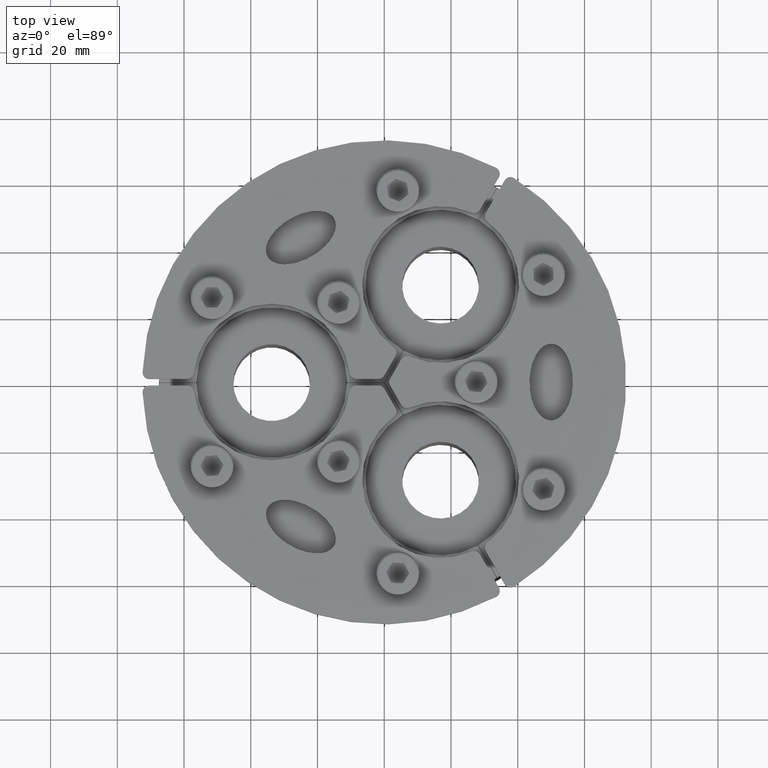
[diagram: clean part render]
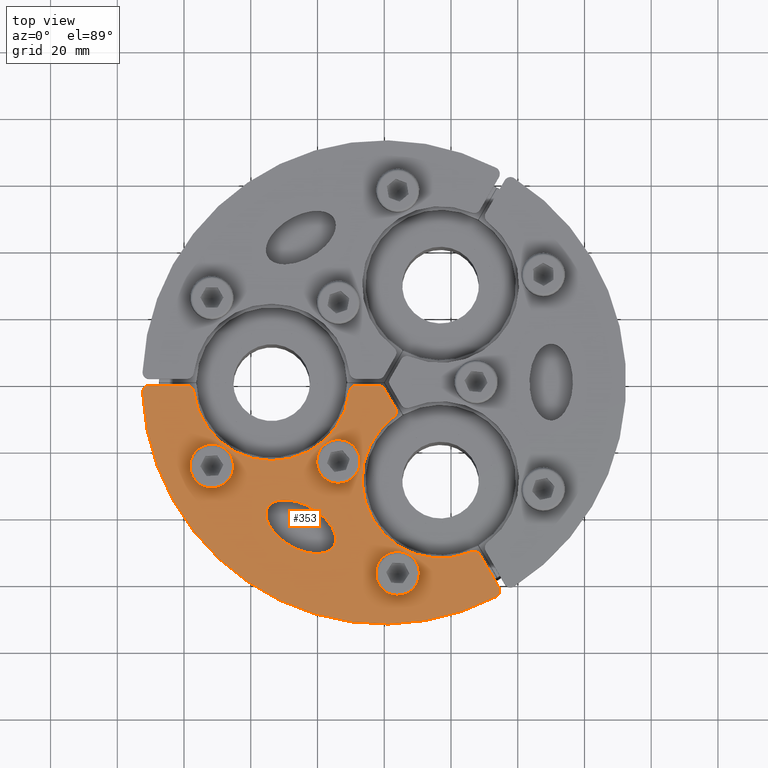
[diagram: same view with one face highlighted and labeled with its STEP entity id]
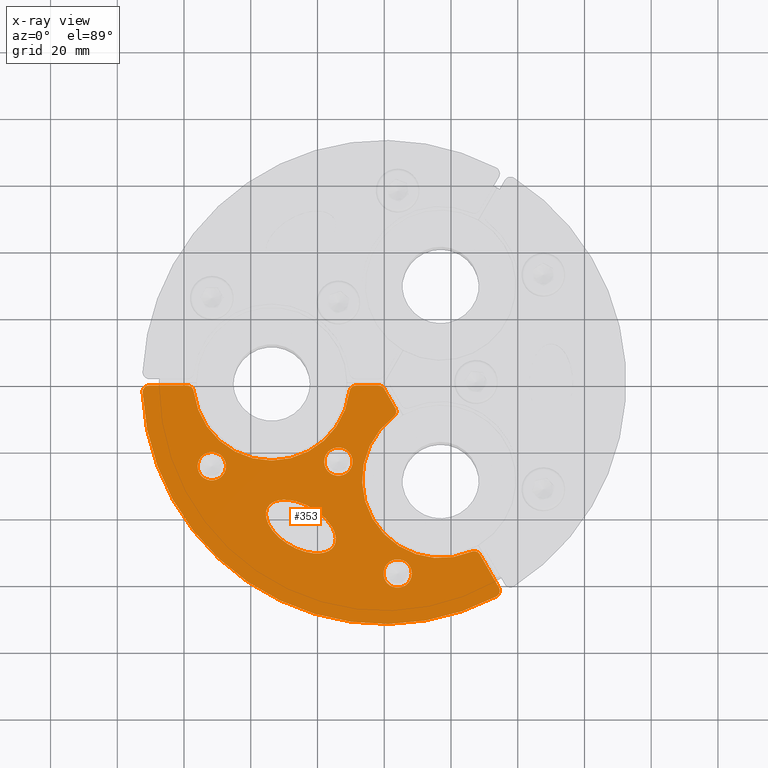
[diagram: x-ray of the same camera — body ghosted, the highlighted face saturated]
A machine part, top view. The second image highlights one B-rep face of the part: STEP entity #353.
The next image is the same camera in x-ray: the body ghosted, the highlighted face saturated — about 0% of this face is hidden behind the body in this view.
In plain terms, the highlighted planar face has unit normal (0, -0, -1).
Its self-contained STEP definition (entity closure, byte-faithful):
#133=CARTESIAN_POINT('',(-34.959292143520933,37.551270189222031,0.0));
#134=VERTEX_POINT('',#133);
#135=CARTESIAN_POINT('',(-24.999999999999876,43.301270189221995,0.0));
#136=DIRECTION('',(0.0,0.0,1.0));
#137=DIRECTION('',(0.86602540378444,0.499999999999998,0.0));
#138=AXIS2_PLACEMENT_3D('',#135,#136,#137);
#139=ELLIPSE('',#138,11.499999999999996,6.499999999999989);
#140=EDGE_CURVE('',#134,#134,#139,.T.);
#172=CARTESIAN_POINT('',(34.35204524183726,61.499487702766807,0.0));
#173=VERTEX_POINT('',#172);
#180=CARTESIAN_POINT('',(33.545384347297286,64.272522814902032,0.0));
#181=VERTEX_POINT('',#180);
#182=CARTESIAN_POINT('',(32.619994434268392,62.499487702766807,0.0));
#183=DIRECTION('',(0.0,0.0,1.0));
#184=DIRECTION('',(0.960199032643298,0.279316697873355,0.0));
#185=AXIS2_PLACEMENT_3D('',#182,#183,#184);
#186=CIRCLE('',#185,2.0);
#187=EDGE_CURVE('',#173,#181,#186,.T.);
#198=CARTESIAN_POINT('',(-20.283703862420303,35.132405655393043,0.0));
#199=DIRECTION('',(0.0,0.0,1.0));
#200=DIRECTION('',(1.0,0.0,0.0));
#201=AXIS2_PLACEMENT_3D('',#198,#199,#200);
#202=PLANE('',#201);
#203=ORIENTED_EDGE('',*,*,#187,.F.);
#204=CARTESIAN_POINT('',(28.670431858316157,51.658644653544961,0.0));
#205=VERTEX_POINT('',#204);
#206=CARTESIAN_POINT('',(34.35204524183726,61.499487702766807,0.0));
#207=DIRECTION('',(-0.500000000000001,-0.866025403784438,0.0));
#208=VECTOR('',#207,11.363226767042187);
#209=LINE('',#206,#208);
#210=EDGE_CURVE('',#173,#205,#209,.T.);
#211=ORIENTED_EDGE('',*,*,#210,.T.);
#212=CARTESIAN_POINT('',(26.149096262453384,50.820975063284564,0.0));
#213=VERTEX_POINT('',#212);
#214=CARTESIAN_POINT('',(26.938381050747285,52.658644653544968,0.0));
#215=DIRECTION('',(0.0,0.0,1.0));
#216=DIRECTION('',(0.315287379777029,-0.948996242433728,0.0));
#217=AXIS2_PLACEMENT_3D('',#214,#215,#216);
#218=CIRCLE('',#217,2.0);
#219=EDGE_CURVE('',#213,#205,#218,.T.);
#220=ORIENTED_EDGE('',*,*,#219,.F.);
#221=CARTESIAN_POINT('',(2.812292681326785,10.400445574517978,0.0));
#222=VERTEX_POINT('',#221);
#223=CARTESIAN_POINT('',(16.875000000000004,29.228357377724802,0.0));
#224=DIRECTION('',(0.0,0.0,1.0));
#225=DIRECTION('',(0.462694956514445,0.886517556067614,0.0));
#226=AXIS2_PLACEMENT_3D('',#223,#224,#225);
#227=CIRCLE('',#226,23.5);
#228=EDGE_CURVE('',#213,#222,#227,.T.);
#229=ORIENTED_EDGE('',*,*,#228,.T.);
#230=CARTESIAN_POINT('',(3.34751733411496,7.798070101904632,0.0));
#231=VERTEX_POINT('',#230);
#232=CARTESIAN_POINT('',(1.615466526546083,8.798070101904632,0.0));
#233=DIRECTION('',(0.0,0.0,1.0));
#234=DIRECTION('',(0.979498543932099,0.201451240837327,0.0));
#235=AXIS2_PLACEMENT_3D('',#232,#233,#234);
#236=CIRCLE('',#235,2.0);
#237=EDGE_CURVE('',#231,#222,#236,.T.);
#238=ORIENTED_EDGE('',*,*,#237,.F.);
#239=CARTESIAN_POINT('',(-1.110223E-015,2.000000000000003,0.0));
#240=VERTEX_POINT('',#239);
#241=CARTESIAN_POINT('',(3.347517334114959,7.798070101904632,0.0));
#242=DIRECTION('',(-0.5,-0.866025403784438,0.0));
#243=VECTOR('',#242,6.695034668229918);
#244=LINE('',#241,#243);
#245=EDGE_CURVE('',#231,#240,#244,.T.);
#246=ORIENTED_EDGE('',*,*,#245,.T.);
#247=CARTESIAN_POINT('',(-1.732050807568884,1.000000000000003,0.0));
#248=VERTEX_POINT('',#247);
#249=CARTESIAN_POINT('',(-1.732050807568879,3.000000000000004,0.0));
#250=DIRECTION('',(0.0,0.0,1.0));
#251=DIRECTION('',(0.499999999999999,-0.866025403784439,0.0));
#252=AXIS2_PLACEMENT_3D('',#249,#250,#251);
#253=CIRCLE('',#252,2.0);
#254=EDGE_CURVE('',#248,#240,#253,.T.);
#255=ORIENTED_EDGE('',*,*,#254,.F.);
#256=CARTESIAN_POINT('',(-8.427085475798812,1.000000000000021,0.0));
#257=VERTEX_POINT('',#256);
#258=CARTESIAN_POINT('',(-1.732050807568884,1.000000000000003,0.0));
#259=DIRECTION('',(-1.0,0.0,0.0));
#260=VECTOR('',#259,6.695034668229928);
#261=LINE('',#258,#260);
#262=EDGE_CURVE('',#248,#257,#261,.T.);
#263=ORIENTED_EDGE('',*,*,#262,.T.);
#264=CARTESIAN_POINT('',(-10.413196418873408,2.764705882352962,0.0));
#265=VERTEX_POINT('',#264);
#266=CARTESIAN_POINT('',(-8.427085475798805,3.000000000000021,0.0));
#267=DIRECTION('',(0.0,0.0,1.0));
#268=DIRECTION('',(-0.664211164155072,-0.747545001596402,0.0));
#269=AXIS2_PLACEMENT_3D('',#266,#267,#268);
#270=CIRCLE('',#269,2.0);
#271=EDGE_CURVE('',#265,#257,#270,.T.);
#272=ORIENTED_EDGE('',*,*,#271,.F.);
#273=CARTESIAN_POINT('',(-57.086803581126595,2.76470588235294,0.0));
#274=VERTEX_POINT('',#273);
#275=CARTESIAN_POINT('',(-33.75,0.0,0.0));
#276=DIRECTION('',(0.0,0.0,1.0));
#277=DIRECTION('',(0.999094202712672,0.042553191489363,0.0));
#278=AXIS2_PLACEMENT_3D('',#275,#276,#277);
#279=CIRCLE('',#278,23.5);
#280=EDGE_CURVE('',#265,#274,#279,.T.);
#281=ORIENTED_EDGE('',*,*,#280,.T.);
#282=CARTESIAN_POINT('',(-59.072914524201195,1.0,0.0));
#283=VERTEX_POINT('',#282);
#284=CARTESIAN_POINT('',(-59.072914524201195,2.999999999999998,0.0));
#285=DIRECTION('',(0.0,0.0,1.0));
#286=DIRECTION('',(0.664211164155073,-0.747545001596401,0.0));
#287=AXIS2_PLACEMENT_3D('',#284,#285,#286);
#288=CIRCLE('',#287,2.0);
#289=EDGE_CURVE('',#283,#274,#288,.T.);
#290=ORIENTED_EDGE('',*,*,#289,.F.);
#291=CARTESIAN_POINT('',(-70.436141291243374,1.0,0.0));
#292=VERTEX_POINT('',#291);
#293=CARTESIAN_POINT('',(-59.072914524201195,1.0,0.0));
#294=DIRECTION('',(-1.0,0.0,0.0));
#295=VECTOR('',#294,11.363226767042178);
#296=LINE('',#293,#295);
#297=EDGE_CURVE('',#283,#292,#296,.T.);
#298=ORIENTED_EDGE('',*,*,#297,.T.);
#299=CARTESIAN_POINT('',(-72.434329696668712,3.085106382978731,0.0));
#300=VERTEX_POINT('',#299);
#301=CARTESIAN_POINT('',(-70.436141291243374,3.000000000000007,0.0));
#302=DIRECTION('',(0.0,0.0,1.0));
#303=DIRECTION('',(-0.721994872381153,-0.691898406021666,0.0));
#304=AXIS2_PLACEMENT_3D('',#301,#302,#303);
#305=CIRCLE('',#304,2.0);
#306=EDGE_CURVE('',#300,#292,#305,.T.);
#307=ORIENTED_EDGE('',*,*,#306,.F.);
#308=CARTESIAN_POINT('',(0.0,0.0,0.0));
#309=DIRECTION('',(0.0,0.0,-1.0));
#310=DIRECTION('',(-0.488007257328683,-0.87283957105217,0.0));
#311=AXIS2_PLACEMENT_3D('',#308,#309,#310);
#312=CIRCLE('',#311,72.5);
#313=EDGE_CURVE('',#300,#181,#312,.T.);
#314=ORIENTED_EDGE('',*,*,#313,.T.);
#315=EDGE_LOOP('',(#203,#211,#220,#229,#238,#246,#255,#263,#272,#281,#290,#298,#307,#314));
#316=FACE_OUTER_BOUND('',#315,.T.);
#317=ORIENTED_EDGE('',*,*,#140,.T.);
#318=EDGE_LOOP('',(#317));
#319=FACE_BOUND('',#318,.T.);
#320=CARTESIAN_POINT('',(-47.430657662202037,25.20634094037209,0.0));
#321=VERTEX_POINT('',#320);
#322=CARTESIAN_POINT('',(-51.68065766220203,25.20634094037209,0.0));
#323=DIRECTION('',(0.0,0.0,1.0));
#324=DIRECTION('',(-1.0,0.0,0.0));
#325=AXIS2_PLACEMENT_3D('',#322,#323,#324);
#326=CIRCLE('',#325,4.25);
#327=EDGE_CURVE('',#321,#321,#326,.T.);
#328=ORIENTED_EDGE('',*,*,#327,.T.);
#329=EDGE_LOOP('',(#328));
#330=FACE_BOUND('',#329,.T.);
#331=CARTESIAN_POINT('',(8.26099724028721,57.359932889939898,0.0));
#332=VERTEX_POINT('',#331);
#333=CARTESIAN_POINT('',(4.010997240287211,57.359932889939898,0.0));
#334=DIRECTION('',(0.0,0.0,1.0));
#335=DIRECTION('',(-1.0,0.0,0.0));
#336=AXIS2_PLACEMENT_3D('',#333,#334,#335);
#337=CIRCLE('',#336,4.25);
#338=EDGE_CURVE('',#332,#332,#337,.T.);
#339=ORIENTED_EDGE('',*,*,#338,.T.);
#340=EDGE_LOOP('',(#339));
#341=FACE_BOUND('',#340,.T.);
#342=CARTESIAN_POINT('',(-9.499999999999936,23.815698604072097,0.0));
#343=VERTEX_POINT('',#342);
#344=CARTESIAN_POINT('',(-13.749999999999936,23.815698604072097,0.0));
#345=DIRECTION('',(0.0,0.0,1.0));
#346=DIRECTION('',(-1.0,0.0,0.0));
#347=AXIS2_PLACEMENT_3D('',#344,#345,#346);
#348=CIRCLE('',#347,4.25);
#349=EDGE_CURVE('',#343,#343,#348,.T.);
#350=ORIENTED_EDGE('',*,*,#349,.T.);
#351=EDGE_LOOP('',(#350));
#352=FACE_BOUND('',#351,.T.);
#353=ADVANCED_FACE('',(#316,#319,#330,#341,#352),#202,.F.);